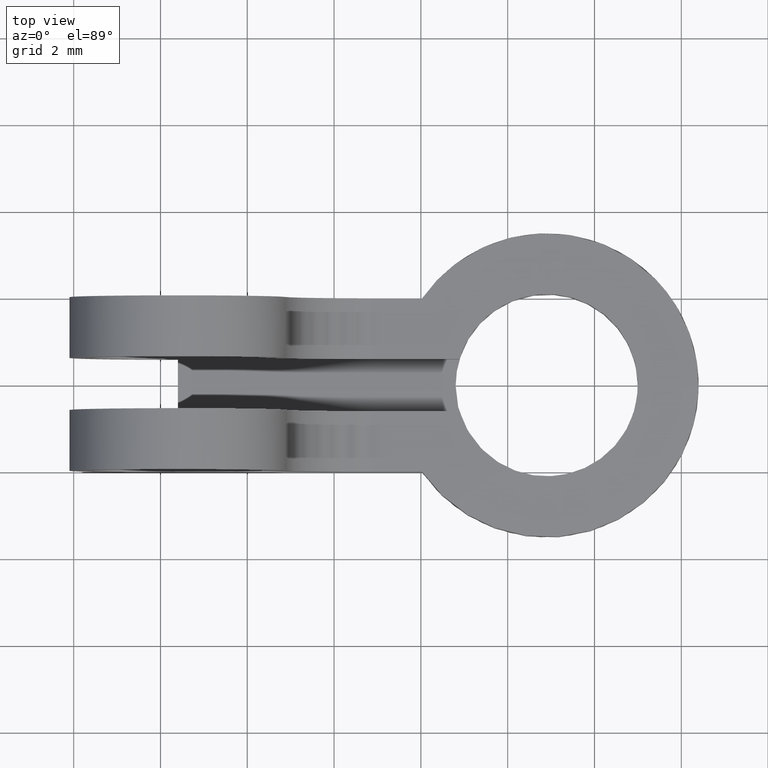
[diagram: clean part render]
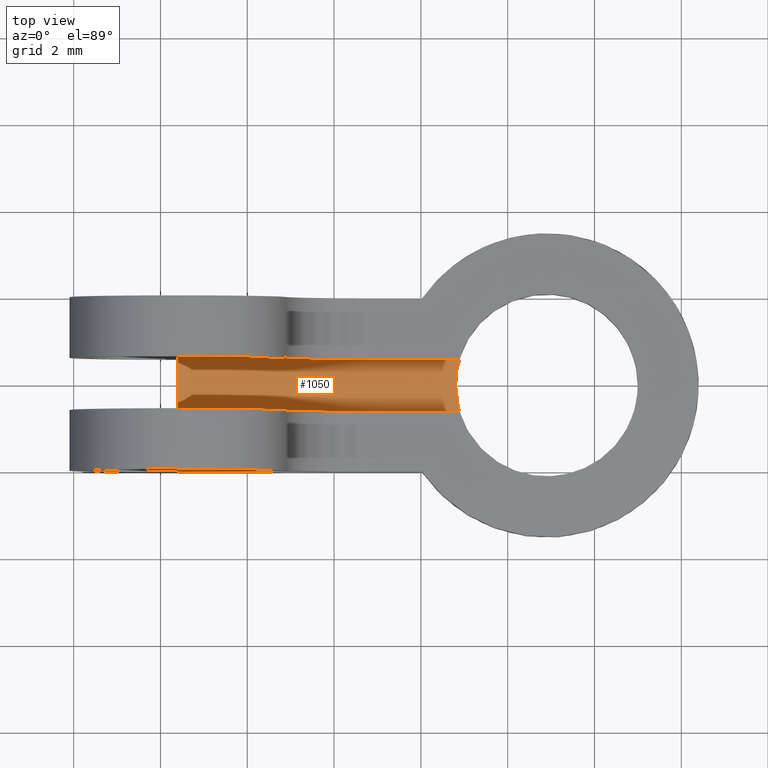
[diagram: same view with one face highlighted and labeled with its STEP entity id]
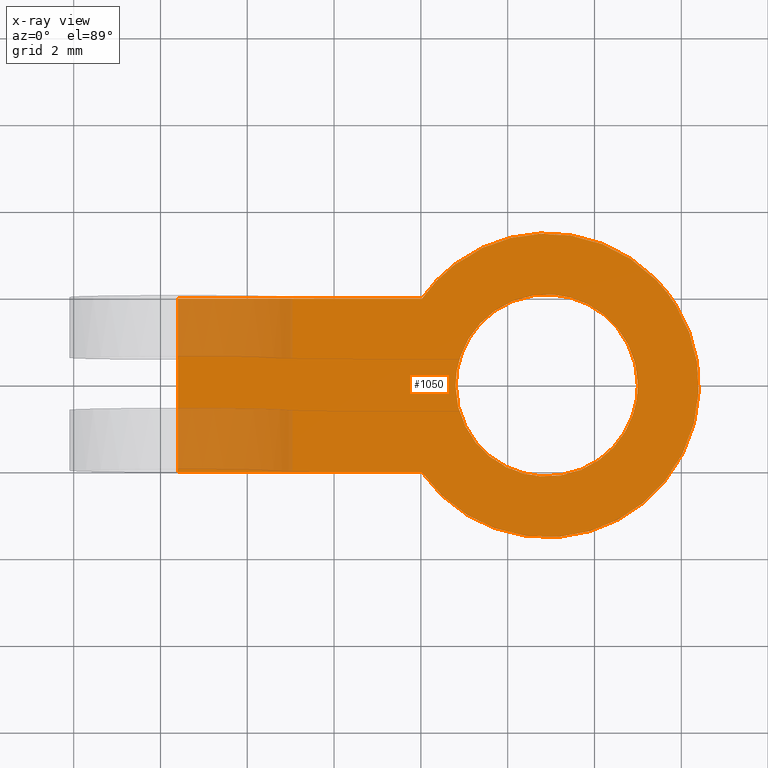
[diagram: x-ray of the same camera — body ghosted, the highlighted face saturated]
A machine part, top view. The second image highlights one B-rep face of the part: STEP entity #1050.
The next image is the same camera in x-ray: the body ghosted, the highlighted face saturated — about 16% of this face is hidden behind the body in this view.
In plain terms, the highlighted face is a freeform B-spline surface patch.
Its self-contained STEP definition (entity closure, byte-faithful):
#100=CARTESIAN_POINT('',(9.064760529551007,2.093526681914811,-2.0));
#101=VERTEX_POINT('',#100);
#107=CARTESIAN_POINT('',(6.800000000000001,0.0,-2.0));
#108=VERTEX_POINT('',#107);
#109=CARTESIAN_POINT('',(9.064760529551007,2.093526681914811,-2.000000000000000));
#110=CARTESIAN_POINT('',(8.982507430690625,2.100000000000001,-2.000000000000000));
#111=CARTESIAN_POINT('',(8.900000000000000,2.100000000000000,-2.0));
#112=CARTESIAN_POINT('',(6.800000000000002,2.100000000000000,-2.000000000000000));
#113=CARTESIAN_POINT('',(6.800000000000001,0.0,-2.0));
#121=(BOUNDED_CURVE()B_SPLINE_CURVE(2,(#109,#110,#111,#112,#113),.UNSPECIFIED.,.F.,.U.)B_SPLINE_CURVE_WITH_KNOTS((3,2,3),(0.736331593076566,0.750000000000000,1.0),.UNSPECIFIED.)CURVE()GEOMETRIC_REPRESENTATION_ITEM()RATIONAL_B_SPLINE_CURVE((0.969723966480516,0.983986465200574,1.0,0.707106781186548,1.0))REPRESENTATION_ITEM(''));
#122=EDGE_CURVE('',#101,#108,#121,.T.);
#124=CARTESIAN_POINT('',(8.735239470448992,-2.093526681914811,-2.0));
#125=VERTEX_POINT('',#124);
#126=CARTESIAN_POINT('',(6.800000000000001,0.0,-2.0));
#127=CARTESIAN_POINT('',(6.800000000000002,-1.941223354373200,-2.0));
#128=CARTESIAN_POINT('',(8.735239470448992,-2.093526681914811,-2.000000000000000));
#136=(BOUNDED_CURVE()B_SPLINE_CURVE(2,(#126,#127,#128),.UNSPECIFIED.,.F.,.U.)B_SPLINE_CURVE_WITH_KNOTS((3,3),(0.0,0.236331593076566),.UNSPECIFIED.)CURVE()GEOMETRIC_REPRESENTATION_ITEM()RATIONAL_B_SPLINE_CURVE((1.0,0.723120315985974,0.969723966480516))REPRESENTATION_ITEM(''));
#137=EDGE_CURVE('',#108,#125,#136,.T.);
#187=CARTESIAN_POINT('',(11.0,0.0,-2.0));
#188=VERTEX_POINT('',#187);
#189=CARTESIAN_POINT('',(8.735239470448992,-2.093526681914810,-2.000000000000000));
#190=CARTESIAN_POINT('',(8.817492569309374,-2.100000000000000,-2.0));
#191=CARTESIAN_POINT('',(8.900000000000000,-2.100000000000000,-2.0));
#192=CARTESIAN_POINT('',(11.0,-2.100000000000000,-2.000000000000000));
#193=CARTESIAN_POINT('',(11.0,0.0,-2.0));
#201=(BOUNDED_CURVE()B_SPLINE_CURVE(2,(#189,#190,#191,#192,#193),.UNSPECIFIED.,.F.,.U.)B_SPLINE_CURVE_WITH_KNOTS((3,2,3),(0.236331593076566,0.250000000000000,0.500000000000000),.UNSPECIFIED.)CURVE()GEOMETRIC_REPRESENTATION_ITEM()RATIONAL_B_SPLINE_CURVE((0.969723966480516,0.983986465200574,1.0,0.707106781186548,1.0))REPRESENTATION_ITEM(''));
#202=EDGE_CURVE('',#125,#188,#201,.T.);
#204=CARTESIAN_POINT('',(11.0,0.0,-2.0));
#205=CARTESIAN_POINT('',(11.000000000000002,1.941223354373202,-2.000000000000000));
#206=CARTESIAN_POINT('',(9.064760529551007,2.093526681914811,-2.000000000000000));
#214=(BOUNDED_CURVE()B_SPLINE_CURVE(2,(#204,#205,#206),.UNSPECIFIED.,.F.,.U.)B_SPLINE_CURVE_WITH_KNOTS((3,3),(0.500000000000000,0.736331593076566),.UNSPECIFIED.)CURVE()GEOMETRIC_REPRESENTATION_ITEM()RATIONAL_B_SPLINE_CURVE((1.0,0.723120315985974,0.969723966480516))REPRESENTATION_ITEM(''));
#215=EDGE_CURVE('',#188,#101,#214,.T.);
#239=CARTESIAN_POINT('',(0.400000000000006,0.600000000000045,-2.0));
#240=VERTEX_POINT('',#239);
#343=CARTESIAN_POINT('',(0.400000000000006,-0.600000000000000,-2.0));
#344=VERTEX_POINT('',#343);
#345=CARTESIAN_POINT('',(0.400000000000006,-0.600000000000000,-2.0));
#346=CARTESIAN_POINT('',(0.400000000000006,0.600000000000045,-2.0));
#347=QUASI_UNIFORM_CURVE('',1,(#345,#346),.UNSPECIFIED.,.F.,.U.);
#348=EDGE_CURVE('',#344,#240,#347,.T.);
#598=CARTESIAN_POINT('',(6.027718691425030,-2.000000000000225,-2.0));
#599=VERTEX_POINT('',#598);
#600=CARTESIAN_POINT('',(6.027718691425051,2.000000021102730,-2.0));
#601=VERTEX_POINT('',#600);
#602=CARTESIAN_POINT('',(6.027718691425030,-2.000000000000225,-2.0));
#603=CARTESIAN_POINT('',(7.496194352325744,-4.108937617553671,-2.0));
#604=CARTESIAN_POINT('',(9.948097172984022,-3.339385020626239,-2.0));
#605=CARTESIAN_POINT('',(12.399999993642302,-2.569832423698805,-2.0));
#606=CARTESIAN_POINT('',(12.400000000000000,-8.658909E-009,-2.0));
#607=CARTESIAN_POINT('',(12.400000006357699,2.569832406380988,-2.0));
#608=CARTESIAN_POINT('',(9.948097189507125,3.339385015440308,-2.0));
#609=CARTESIAN_POINT('',(7.496194372656553,4.108937624499627,-2.0));
#610=CARTESIAN_POINT('',(6.027718691425044,2.000000021102734,-2.0));
#618=(BOUNDED_CURVE()B_SPLINE_CURVE(2,(#602,#603,#604,#605,#606,#607,#608,#609,#610),.UNSPECIFIED.,.F.,.U.)B_SPLINE_CURVE_WITH_KNOTS((3,2,2,2,3),(0.0,0.250000000000000,0.500000000000000,0.750000000000000,1.0),.UNSPECIFIED.)CURVE()GEOMETRIC_REPRESENTATION_ITEM()RATIONAL_B_SPLINE_CURVE((1.0,0.806057174615652,1.0,0.806057174615652,1.0,0.806057174615652,1.0,0.806057174615652,1.0))REPRESENTATION_ITEM(''));
#619=EDGE_CURVE('',#599,#601,#618,.T.);
#751=CARTESIAN_POINT('',(0.400000000000006,-2.000000000000225,-2.0));
#752=VERTEX_POINT('',#751);
#753=CARTESIAN_POINT('',(6.027718691425030,-2.000000000000225,-2.0));
#754=CARTESIAN_POINT('',(0.400000000000006,-2.000000000000225,-2.0));
#755=QUASI_UNIFORM_CURVE('',1,(#753,#754),.UNSPECIFIED.,.F.,.U.);
#756=EDGE_CURVE('',#599,#752,#755,.T.);
#893=CARTESIAN_POINT('',(0.400000000000006,2.0,-2.0));
#894=VERTEX_POINT('',#893);
#912=CARTESIAN_POINT('',(0.400000000000006,2.0,-2.0));
#913=CARTESIAN_POINT('',(6.027718691425051,2.000000021102730,-2.0));
#914=QUASI_UNIFORM_CURVE('',1,(#912,#913),.UNSPECIFIED.,.F.,.U.);
#915=EDGE_CURVE('',#894,#601,#914,.T.);
#1023=CARTESIAN_POINT('',(12.999399638799421,-3.844686116012900,-2.0));
#1024=CARTESIAN_POINT('',(-0.199400282529587,-3.844686116012900,-2.0));
#1025=CARTESIAN_POINT('',(12.999399638799421,3.844686003428001,-2.0));
#1026=CARTESIAN_POINT('',(-0.199400282529587,3.844686003428001,-2.0));
#1027=B_SPLINE_SURFACE_WITH_KNOTS('',1,1,((#1023,#1025),(#1024,#1026)),.UNSPECIFIED.,.F.,.F.,.U.,(2,2),(2,2),(0.0,13.198799921329011),(0.0,7.689372119440902),.UNSPECIFIED.);
#1028=CARTESIAN_POINT('',(0.400000000000006,2.0,-2.0));
#1029=CARTESIAN_POINT('',(0.400000000000006,0.600000000000045,-2.0));
#1030=QUASI_UNIFORM_CURVE('',1,(#1028,#1029),.UNSPECIFIED.,.F.,.U.);
#1031=EDGE_CURVE('',#894,#240,#1030,.T.);
#1032=ORIENTED_EDGE('',*,*,#1031,.T.);
#1033=ORIENTED_EDGE('',*,*,#348,.F.);
#1034=CARTESIAN_POINT('',(0.400000000000006,-0.600000000000000,-2.0));
#1035=CARTESIAN_POINT('',(0.400000000000006,-2.000000000000225,-2.0));
#1036=QUASI_UNIFORM_CURVE('',1,(#1034,#1035),.UNSPECIFIED.,.F.,.U.);
#1037=EDGE_CURVE('',#344,#752,#1036,.T.);
#1038=ORIENTED_EDGE('',*,*,#1037,.T.);
#1039=ORIENTED_EDGE('',*,*,#756,.F.);
#1040=ORIENTED_EDGE('',*,*,#619,.T.);
#1041=ORIENTED_EDGE('',*,*,#915,.F.);
#1042=EDGE_LOOP('',(#1032,#1033,#1038,#1039,#1040,#1041));
#1043=FACE_OUTER_BOUND('',#1042,.T.);
#1044=ORIENTED_EDGE('',*,*,#215,.F.);
#1045=ORIENTED_EDGE('',*,*,#202,.F.);
#1046=ORIENTED_EDGE('',*,*,#137,.F.);
#1047=ORIENTED_EDGE('',*,*,#122,.F.);
#1048=EDGE_LOOP('',(#1044,#1045,#1046,#1047));
#1049=FACE_BOUND('',#1048,.T.);
#1050=ADVANCED_FACE('',(#1043,#1049),#1027,.F.);